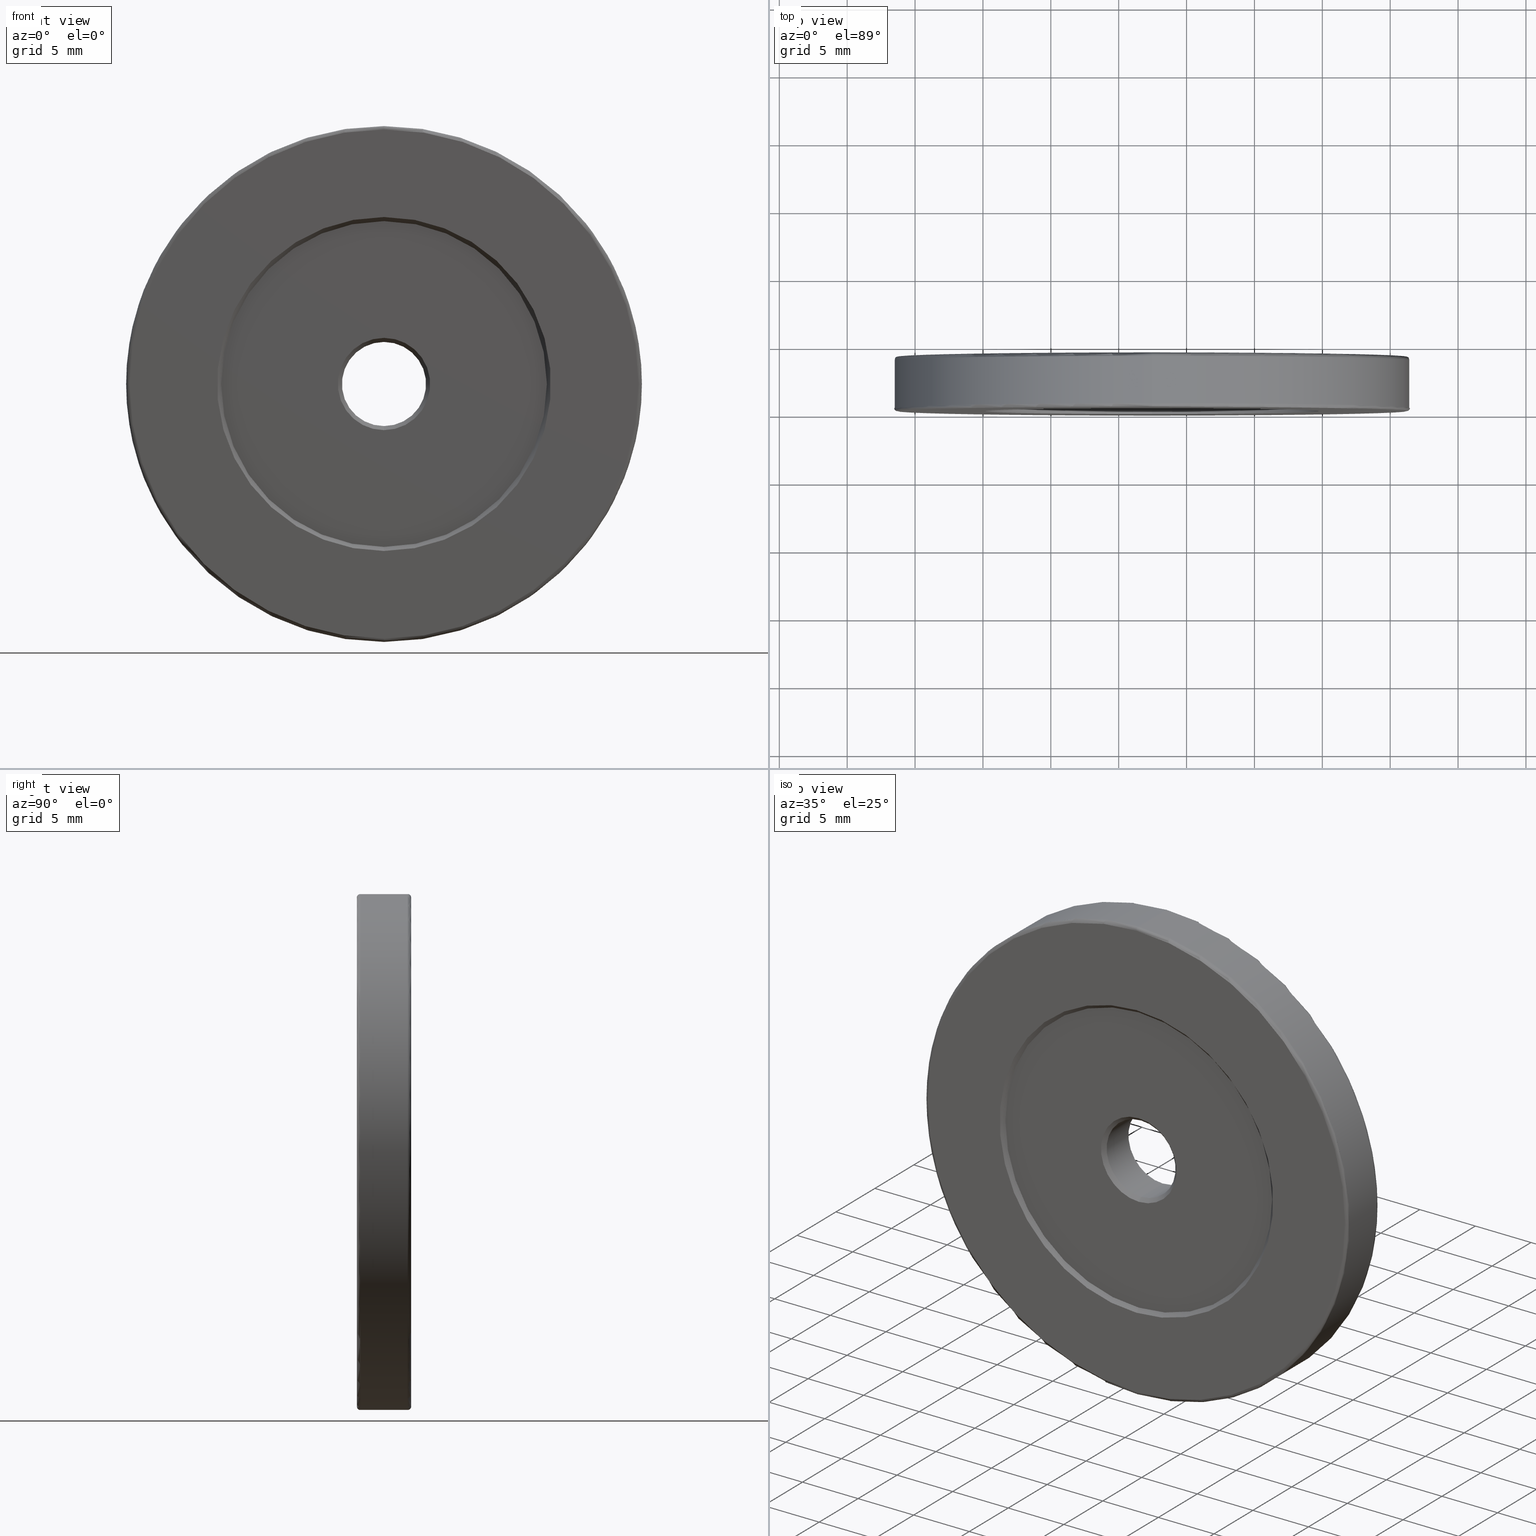
[diagram: canonical four-view strip — front | top / right | iso, engineering-drawing reading convention]
A machine part, canonical four-view strip (front | top / right | iso — engineering-drawing reading convention). The complete STEP part file that produces these views, byte-faithful:
ISO-10303-21;
HEADER;
FILE_DESCRIPTION (( 'STEP AP203' ),
    '1' );
FILE_NAME ('1.4.2.117_ZGH-38-DK4.STEP',
    '2024-04-06T05:19:42',
    ( '' ),
    ( '' ),
    'SwSTEP 2.0',
    'SolidWorks 2021',
    '' );
FILE_SCHEMA (( 'CONFIG_CONTROL_DESIGN' ));
ENDSEC;

DATA;
#1 = EDGE_CURVE ( 'NONE', #395, #132, #88, .T. ) ;
#2 = FACE_OUTER_BOUND ( 'NONE', #260, .T. ) ;
#3 = FACE_OUTER_BOUND ( 'NONE', #17, .T. ) ;
#4 = FACE_OUTER_BOUND ( 'NONE', #472, .T. ) ;
#5 = AXIS2_PLACEMENT_3D ( 'NONE', #425, #193, #385 ) ;
#6 = LOCAL_TIME ( 13, 19, 42.00000000000000000, #368 ) ;
#7 = CIRCLE ( 'NONE', #429, 0.2500000000000002220 ) ;
#8 = FACE_BOUND ( 'NONE', #436, .T. ) ;
#9 = CARTESIAN_POINT ( 'NONE',  ( -7.546808913101045846, -1.143595127302727832, 19.25000000000000000 ) ) ;
#10 = EDGE_LOOP ( 'NONE', ( #533, #67 ) ) ;
#11 = DIRECTION ( 'NONE',  ( -0.000000000000000000, -1.000000000000000000, -0.000000000000000000 ) ) ;
#12 = OPEN_SHELL ( 'NONE', ( #575, #25, #50, #387, #441, #44, #69, #548, #148, #480, #526, #565, #557, #524, #199, #464, #331, #583, #217, #59 ) ) ;
#13 = DIRECTION ( 'NONE',  ( 0.000000000000000000, 0.000000000000000000, -1.000000000000000000 ) ) ;
#14 = ORIENTED_EDGE ( 'NONE', *, *, #178, .F. ) ;
#15 = CARTESIAN_POINT ( 'NONE',  ( -7.546808913101048510, -1.493595127302719483, 34.89999999999999858 ) ) ;
#16 = PERSON ( 'δָ��', 'δָ��', 'δָ��', ('δָ��'), ('δָ��'), ('δָ��') ) ;
#17 = EDGE_LOOP ( 'NONE', ( #433, #281, #486, #106 ) ) ;
#18 = DIRECTION ( 'NONE',  ( 0.000000000000000000, 0.000000000000000000, 1.000000000000000000 ) ) ;
#19 = CARTESIAN_POINT ( 'NONE',  ( -7.546808913101048510, -4.893595127302727832, 38.00000000000000000 ) ) ;
#20 = ORIENTED_EDGE ( 'NONE', *, *, #296, .F. ) ;
#21 = DIRECTION ( 'NONE',  ( 0.000000000000000000, 1.000000000000000000, 0.000000000000000000 ) ) ;
#22 = CIRCLE ( 'NONE', #362, 12.30000000000001315 ) ;
#23 = EDGE_CURVE ( 'NONE', #163, #558, #190, .T. ) ;
#24 = CARTESIAN_POINT ( 'NONE',  ( -7.546808913101048510, -1.493595127302719483, 34.89999999999999858 ) ) ;
#25 = ADVANCED_FACE ( 'NONE', ( #333 ), #510, .T. ) ;
#26 = VECTOR ( 'NONE', #404, 1000.000000000000000 ) ;
#27 = CC_DESIGN_PERSON_AND_ORGANIZATION_ASSIGNMENT ( #448, #602, ( #409 ) ) ;
#28 = ORIENTED_EDGE ( 'NONE', *, *, #136, .F. ) ;
#29 = CARTESIAN_POINT ( 'NONE',  ( -7.546808913101048510, -4.643595127302727832, 38.00000000000000000 ) ) ;
#30 = ORIENTED_EDGE ( 'NONE', *, *, #256, .T. ) ;
#31 = DATE_AND_TIME ( #126, #6 ) ;
#32 = CARTESIAN_POINT ( 'NONE',  ( -7.546808913101048510, -1.143595127302727832, 56.99999999999999289 ) ) ;
#33 = ORIENTED_EDGE ( 'NONE', *, *, #107, .T. ) ;
#34 = DATE_AND_TIME ( #219, #172 ) ;
#35 = DIRECTION ( 'NONE',  ( 0.000000000000000000, 1.000000000000000000, 0.000000000000000000 ) ) ;
#36 = CONICAL_SURFACE ( 'NONE', #45, 12.30000000000001315, 0.7853981633974396193 ) ;
#37 = VECTOR ( 'NONE', #271, 1000.000000000000000 ) ;
#38 = ORIENTED_EDGE ( 'NONE', *, *, #247, .T. ) ;
#39 = DIRECTION ( 'NONE',  ( 0.000000000000000000, 1.000000000000000000, 0.000000000000000000 ) ) ;
#40 = PLANE ( 'NONE',  #186 ) ;
#41 = DATE_AND_TIME ( #273, #578 ) ;
#42 = DIRECTION ( 'NONE',  ( 0.000000000000000000, 0.000000000000000000, 1.000000000000000000 ) ) ;
#43 = FACE_OUTER_BOUND ( 'NONE', #451, .T. ) ;
#44 = ADVANCED_FACE ( 'NONE', ( #4 ), #353, .F. ) ;
#45 = AXIS2_PLACEMENT_3D ( 'NONE', #544, #238, #305 ) ;
#46 = TOROIDAL_SURFACE ( 'NONE', #612, 18.75000000000000000, 0.2500000000000000000 ) ;
#47 = CARTESIAN_POINT ( 'NONE',  ( -7.546808913101048510, -4.293595127302728187, 34.89999999999999858 ) ) ;
#48 = PLANE ( 'NONE',  #5 ) ;
#49 = DIRECTION ( 'NONE',  ( 0.000000000000000000, 0.000000000000000000, 1.000000000000000000 ) ) ;
#50 = ADVANCED_FACE ( 'NONE', ( #99 ), #521, .T. ) ;
#51 = CARTESIAN_POINT ( 'NONE',  ( -7.546808913101045846, -4.643595127302727832, 56.99999999999999289 ) ) ;
#52 = CARTESIAN_POINT ( 'NONE',  ( -7.546808913101048510, -0.8935951273027278319, 56.74999999999999289 ) ) ;
#53 = AXIS2_PLACEMENT_3D ( 'NONE', #207, #144, #541 ) ;
#54 = AXIS2_PLACEMENT_3D ( 'NONE', #101, #188, #294 ) ;
#55 = DIRECTION ( 'NONE',  ( 0.000000000000000000, 0.000000000000000000, 1.000000000000000000 ) ) ;
#56 = DIRECTION ( 'NONE',  ( -0.000000000000000000, -1.000000000000000000, -0.000000000000000000 ) ) ;
#57 = ORIENTED_EDGE ( 'NONE', *, *, #377, .T. ) ;
#58 = ORIENTED_EDGE ( 'NONE', *, *, #400, .F. ) ;
#59 = ADVANCED_FACE ( 'NONE', ( #91, #292 ), #40, .T. ) ;
#60 = CARTESIAN_POINT ( 'NONE',  ( -7.546808913101048510, -4.643595127302727832, 56.74999999999999289 ) ) ;
#61 = EDGE_CURVE ( 'NONE', #326, #62, #485, .T. ) ;
#62 = VERTEX_POINT ( 'NONE', #52 ) ;
#63 = CIRCLE ( 'NONE', #95, 3.099999999999998757 ) ;
#64 = ORIENTED_EDGE ( 'NONE', *, *, #567, .T. ) ;
#65 = FACE_OUTER_BOUND ( 'NONE', #79, .T. ) ;
#66 = CARTESIAN_POINT ( 'NONE',  ( -7.546808913101048510, -4.593595127302728010, 38.00000000000000000 ) ) ;
#67 = ORIENTED_EDGE ( 'NONE', *, *, #593, .F. ) ;
#68 = CARTESIAN_POINT ( 'NONE',  ( -7.546808913101048510, -1.493595127302719483, 38.00000000000000000 ) ) ;
#69 = ADVANCED_FACE ( 'NONE', ( #152 ), #105, .F. ) ;
#70 = EDGE_CURVE ( 'NONE', #225, #326, #7, .T. ) ;
#71 = DIRECTION ( 'NONE',  ( -0.000000000000000000, -1.000000000000000000, -0.000000000000000000 ) ) ;
#72 = EDGE_LOOP ( 'NONE', ( #546, #110, #33, #458 ) ) ;
#73 = MECHANICAL_CONTEXT ( 'NONE', #577, 'mechanical' ) ;
#74 = VECTOR ( 'NONE', #325, 1000.000000000000000 ) ;
#75 = APPROVAL_PERSON_ORGANIZATION ( #547, #420, #83 ) ;
#76 = DIRECTION ( 'NONE',  ( 0.000000000000000000, 0.000000000000000000, 1.000000000000000000 ) ) ;
#77 = AXIS2_PLACEMENT_3D ( 'NONE', #255, #481, #145 ) ;
#78 = CIRCLE ( 'NONE', #393, 3.099999999999998757 ) ;
#79 = EDGE_LOOP ( 'NONE', ( #531, #30 ) ) ;
#80 = COORDINATED_UNIVERSAL_TIME_OFFSET ( 8, 0, .AHEAD. ) ;
#81 = DIRECTION ( 'NONE',  ( 0.000000000000000000, 0.000000000000000000, 1.000000000000000000 ) ) ;
#82 = EDGE_LOOP ( 'NONE', ( #149, #543 ) ) ;
#83 = APPROVAL_ROLE ( '' ) ;
#84 = DIRECTION ( 'NONE',  ( 0.000000000000000000, 0.000000000000000000, -1.000000000000000000 ) ) ;
#85 = ORIENTED_EDGE ( 'NONE', *, *, #23, .T. ) ;
#86 = APPROVAL_DATE_TIME ( #34, #420 ) ;
#87 = DIRECTION ( 'NONE',  ( 0.000000000000000000, 0.7071067811865392461, 0.7071067811865556774 ) ) ;
#88 = CIRCLE ( 'NONE', #529, 12.00000000000000355 ) ;
#89 = ORIENTED_EDGE ( 'NONE', *, *, #380, .F. ) ;
#90 = CARTESIAN_POINT ( 'NONE',  ( -7.546808913101048510, -4.643595127302727832, 19.00000000000000000 ) ) ;
#91 = FACE_BOUND ( 'NONE', #117, .T. ) ;
#92 = EDGE_CURVE ( 'NONE', #225, #439, #242, .T. ) ;
#93 = ORIENTED_EDGE ( 'NONE', *, *, #268, .F. ) ;
#94 = CARTESIAN_POINT ( 'NONE',  ( -7.546808913101046734, -4.893595127302727832, 50.30000000000001137 ) ) ;
#95 = AXIS2_PLACEMENT_3D ( 'NONE', #427, #115, #261 ) ;
#96 = AXIS2_PLACEMENT_3D ( 'NONE', #112, #494, #162 ) ;
#97 = EDGE_CURVE ( 'NONE', #125, #604, #600, .T. ) ;
#98 = DIRECTION ( 'NONE',  ( 0.000000000000000000, 0.000000000000000000, 1.000000000000000000 ) ) ;
#99 = FACE_OUTER_BOUND ( 'NONE', #581, .T. ) ;
#100 = FACE_OUTER_BOUND ( 'NONE', #174, .T. ) ;
#101 = CARTESIAN_POINT ( 'NONE',  ( -7.546808913101048510, -0.8935951273027278319, 38.00000000000000000 ) ) ;
#102 = PLANE ( 'NONE',  #609 ) ;
#103 = ORIENTED_EDGE ( 'NONE', *, *, #107, .F. ) ;
#104 = VECTOR ( 'NONE', #119, 1000.000000000000000 ) ;
#105 = CYLINDRICAL_SURFACE ( 'NONE', #77, 3.099999999999998757 ) ;
#106 = ORIENTED_EDGE ( 'NONE', *, *, #127, .F. ) ;
#107 = EDGE_CURVE ( 'NONE', #584, #214, #300, .T. ) ;
#108 = ORIENTED_EDGE ( 'NONE', *, *, #501, .F. ) ;
#109 = UNCERTAINTY_MEASURE_WITH_UNIT (LENGTH_MEASURE( 1.000000000000000082E-05 ), #324, 'distance_accuracy_value', 'NONE');
#110 = ORIENTED_EDGE ( 'NONE', *, *, #248, .T. ) ;
#111 = CYLINDRICAL_SURFACE ( 'NONE', #446, 3.099999999999998757 ) ;
#112 = CARTESIAN_POINT ( 'NONE',  ( -7.546808913101048510, -4.643595127302727832, 38.00000000000000000 ) ) ;
#113 = EDGE_CURVE ( 'NONE', #125, #439, #570, .T. ) ;
#114 = EDGE_LOOP ( 'NONE', ( #482, #489 ) ) ;
#115 = DIRECTION ( 'NONE',  ( -0.000000000000000000, -1.000000000000000000, -0.000000000000000000 ) ) ;
#116 = CARTESIAN_POINT ( 'NONE',  ( -7.546808913101048510, -4.593595127302728010, 34.60000000000000142 ) ) ;
#117 = EDGE_LOOP ( 'NONE', ( #169, #64 ) ) ;
#118 = FACE_OUTER_BOUND ( 'NONE', #114, .T. ) ;
#119 = DIRECTION ( 'NONE',  ( 0.000000000000000000, 0.7071067811865373587, 0.7071067811865577868 ) ) ;
#120 = ORIENTED_EDGE ( 'NONE', *, *, #178, .T. ) ;
#121 = APPROVAL_STATUS ( 'not_yet_approved' ) ;
#122 = AXIS2_PLACEMENT_3D ( 'NONE', #490, #158, #444 ) ;
#123 = LINE ( 'NONE', #358, #344 ) ;
#124 = VECTOR ( 'NONE', #11, 1000.000000000000000 ) ;
#125 = VERTEX_POINT ( 'NONE', #477 ) ;
#126 = CALENDAR_DATE ( 2024, 6, 4 ) ;
#127 = EDGE_CURVE ( 'NONE', #257, #540, #245, .T. ) ;
#128 = PRODUCT_DEFINITION_SHAPE ( 'NONE', 'NONE',  #528 ) ;
#129 = DIRECTION ( 'NONE',  ( -0.000000000000000000, -1.000000000000000000, -0.000000000000000000 ) ) ;
#130 = ORIENTED_EDGE ( 'NONE', *, *, #501, .T. ) ;
#131 = CARTESIAN_POINT ( 'NONE',  ( -7.546808913101048510, -4.893595127302727832, 34.89999999999999858 ) ) ;
#132 = VERTEX_POINT ( 'NONE', #483 ) ;
#133 = PERSON_AND_ORGANIZATION_ROLE ( 'creator' ) ;
#134 = AXIS2_PLACEMENT_3D ( 'NONE', #68, #571, #246 ) ;
#135 = TOROIDAL_SURFACE ( 'NONE', #478, 18.75000000000000000, 0.2500000000000000000 ) ;
#136 = EDGE_CURVE ( 'NONE', #604, #558, #468, .T. ) ;
#137 = PERSON_AND_ORGANIZATION_ROLE ( 'creator' ) ;
#138 = DIRECTION ( 'NONE',  ( 0.000000000000000000, 1.000000000000000000, 0.000000000000000000 ) ) ;
#139 = DIRECTION ( 'NONE',  ( 0.000000000000000000, 0.000000000000000000, 1.000000000000000000 ) ) ;
#140 = CARTESIAN_POINT ( 'NONE',  ( -7.546808913101048510, -4.593595127302728010, 38.00000000000000000 ) ) ;
#141 = DIRECTION ( 'NONE',  ( 0.000000000000000000, 1.000000000000000000, 0.000000000000000000 ) ) ;
#142 = APPROVAL ( #559, 'δָ��' ) ;
#143 = CARTESIAN_POINT ( 'NONE',  ( -7.546808913101048510, -4.893595127302727832, 38.00000000000000000 ) ) ;
#144 = DIRECTION ( 'NONE',  ( -0.000000000000000000, -1.000000000000000000, -0.000000000000000000 ) ) ;
#145 = DIRECTION ( 'NONE',  ( 0.000000000000000000, 0.000000000000000000, 1.000000000000000000 ) ) ;
#146 = ORIENTED_EDGE ( 'NONE', *, *, #454, .F. ) ;
#147 = EDGE_CURVE ( 'NONE', #558, #439, #224, .T. ) ;
#148 = ADVANCED_FACE ( 'NONE', ( #453 ), #306, .F. ) ;
#149 = ORIENTED_EDGE ( 'NONE', *, *, #312, .T. ) ;
#150 = AXIS2_PLACEMENT_3D ( 'NONE', #313, #588, #220 ) ;
#151 = AXIS2_PLACEMENT_3D ( 'NONE', #237, #513, #98 ) ;
#152 = FACE_OUTER_BOUND ( 'NONE', #302, .T. ) ;
#153 = ORIENTED_EDGE ( 'NONE', *, *, #61, .T. ) ;
#154 = EDGE_CURVE ( 'NONE', #132, #320, #168, .T. ) ;
#155 = FACE_BOUND ( 'NONE', #590, .T. ) ;
#156 = DIRECTION ( 'NONE',  ( 0.000000000000000000, 1.000000000000000000, 0.000000000000000000 ) ) ;
#157 = ORIENTED_EDGE ( 'NONE', *, *, #113, .T. ) ;
#158 = DIRECTION ( 'NONE',  ( -1.000000000000000000, 0.000000000000000000, 0.000000000000000000 ) ) ;
#159 = AXIS2_PLACEMENT_3D ( 'NONE', #603, #563, #176 ) ;
#160 = CC_DESIGN_APPROVAL ( #596, ( #476 ) ) ;
#161 = AXIS2_PLACEMENT_3D ( 'NONE', #390, #520, #203 ) ;
#162 = DIRECTION ( 'NONE',  ( 0.000000000000000000, 0.000000000000000000, 1.000000000000000000 ) ) ;
#163 = VERTEX_POINT ( 'NONE', #32 ) ;
#164 = FACE_OUTER_BOUND ( 'NONE', #598, .T. ) ;
#165 = DIRECTION ( 'NONE',  ( 0.000000000000000000, 0.000000000000000000, -1.000000000000000000 ) ) ;
#166 = ORIENTED_EDGE ( 'NONE', *, *, #180, .T. ) ;
#167 = DATE_TIME_ROLE ( 'classification_date' ) ;
#168 = LINE ( 'NONE', #586, #37 ) ;
#169 = ORIENTED_EDGE ( 'NONE', *, *, #311, .T. ) ;
#170 = DATE_AND_TIME ( #321, #364 ) ;
#171 = EDGE_CURVE ( 'NONE', #594, #214, #336, .T. ) ;
#172 = LOCAL_TIME ( 13, 19, 42.00000000000000000, #555 ) ;
#173 = CARTESIAN_POINT ( 'NONE',  ( -7.546808913101044958, -1.143595127302727832, 19.00000000000000000 ) ) ;
#174 = EDGE_LOOP ( 'NONE', ( #252, #402, #408, #492 ) ) ;
#175 = APPROVAL_DATE_TIME ( #170, #596 ) ;
#176 = DIRECTION ( 'NONE',  ( 0.000000000000000000, 0.000000000000000000, -1.000000000000000000 ) ) ;
#177 = ORIENTED_EDGE ( 'NONE', *, *, #147, .T. ) ;
#178 = EDGE_CURVE ( 'NONE', #439, #558, #589, .T. ) ;
#179 = DIRECTION ( 'NONE',  ( -0.000000000000000000, -1.000000000000000000, -0.000000000000000000 ) ) ;
#180 = EDGE_CURVE ( 'NONE', #225, #163, #435, .T. ) ;
#181 = EDGE_CURVE ( 'NONE', #320, #250, #496, .T. ) ;
#182 = VERTEX_POINT ( 'NONE', #537 ) ;
#183 = DIRECTION ( 'NONE',  ( 0.000000000000000000, 0.000000000000000000, 1.000000000000000000 ) ) ;
#184 = DIRECTION ( 'NONE',  ( 0.000000000000000000, 0.000000000000000000, 1.000000000000000000 ) ) ;
#185 = CIRCLE ( 'NONE', #434, 12.00000000000000355 ) ;
#186 = AXIS2_PLACEMENT_3D ( 'NONE', #228, #284, #417 ) ;
#187 = AXIS2_PLACEMENT_3D ( 'NONE', #457, #35, #213 ) ;
#188 = DIRECTION ( 'NONE',  ( -0.000000000000000000, -1.000000000000000000, -0.000000000000000000 ) ) ;
#189 = FACE_OUTER_BOUND ( 'NONE', #587, .T. ) ;
#190 = LINE ( 'NONE', #566, #413 ) ;
#191 = DIRECTION ( 'NONE',  ( 0.000000000000000000, 1.000000000000000000, 0.000000000000000000 ) ) ;
#192 = CC_DESIGN_PERSON_AND_ORGANIZATION_ASSIGNMENT ( #503, #456, ( #476 ) ) ;
#193 = DIRECTION ( 'NONE',  ( 0.000000000000000000, 1.000000000000000000, 0.000000000000000000 ) ) ;
#194 = CC_DESIGN_APPROVAL ( #142, ( #528 ) ) ;
#195 = AXIS2_PLACEMENT_3D ( 'NONE', #549, #71, #350 ) ;
#196 = DIRECTION ( 'NONE',  ( 0.000000000000000000, 1.000000000000000000, 0.000000000000000000 ) ) ;
#197 = DIRECTION ( 'NONE',  ( 1.000000000000000000, -0.000000000000000000, 1.224646799147353207E-16 ) ) ;
#198 = EDGE_CURVE ( 'NONE', #395, #250, #307, .T. ) ;
#199 = ADVANCED_FACE ( 'NONE', ( #208 ), #135, .T. ) ;
#200 = VERTEX_POINT ( 'NONE', #407 ) ;
#201 = PRODUCT_RELATED_PRODUCT_CATEGORY ( 'detail', '', ( #409 ) ) ;
#202 = CIRCLE ( 'NONE', #335, 3.400000000000000355 ) ;
#203 = DIRECTION ( 'NONE',  ( 0.000000000000000000, 0.000000000000000000, 1.000000000000000000 ) ) ;
#204 = ORIENTED_EDGE ( 'NONE', *, *, #454, .T. ) ;
#205 = CARTESIAN_POINT ( 'NONE',  ( -7.546808913101048510, -4.893595127302727832, 56.74999999999999289 ) ) ;
#206 = EDGE_LOOP ( 'NONE', ( #57, #153 ) ) ;
#207 = CARTESIAN_POINT ( 'NONE',  ( -7.546808913101048510, -4.593595127302728010, 38.00000000000000000 ) ) ;
#208 = FACE_OUTER_BOUND ( 'NONE', #343, .T. ) ;
#209 = MANIFOLD_SURFACE_SHAPE_REPRESENTATION ( '1.4.2.117_ZGH-38-DK4', ( #240, #495 ), #222 ) ;
#210 = ORIENTED_EDGE ( 'NONE', *, *, #248, .F. ) ;
#211 = DIRECTION ( 'NONE',  ( -0.000000000000000000, 1.000000000000000000, -0.000000000000000000 ) ) ;
#212 = AXIS2_PLACEMENT_3D ( 'NONE', #394, #582, #523 ) ;
#213 = DIRECTION ( 'NONE',  ( 0.000000000000000000, 0.000000000000000000, 1.000000000000000000 ) ) ;
#214 = VERTEX_POINT ( 'NONE', #360 ) ;
#215 = APPLICATION_PROTOCOL_DEFINITION ( 'international standard', 'config_control_design', 1994, #383 ) ;
#216 = CARTESIAN_POINT ( 'NONE',  ( -7.546808913101048510, -4.893595127302727832, 25.69999999999998508 ) ) ;
#217 = ADVANCED_FACE ( 'NONE', ( #488 ), #365, .F. ) ;
#218 = ORIENTED_EDGE ( 'NONE', *, *, #554, .T. ) ;
#219 = CALENDAR_DATE ( 2024, 6, 4 ) ;
#220 = DIRECTION ( 'NONE',  ( 0.000000000000000000, 0.000000000000000000, 1.000000000000000000 ) ) ;
#221 = ORIENTED_EDGE ( 'NONE', *, *, #171, .F. ) ;
#222 =( GEOMETRIC_REPRESENTATION_CONTEXT ( 3 ) GLOBAL_UNCERTAINTY_ASSIGNED_CONTEXT ( ( #109 ) ) GLOBAL_UNIT_ASSIGNED_CONTEXT ( ( #324, #317, #327 ) ) REPRESENTATION_CONTEXT ( 'NONE', 'WORKASPACE' ) );
#223 = DIRECTION ( 'NONE',  ( -0.000000000000000000, 1.000000000000000000, -0.000000000000000000 ) ) ;
#224 = CIRCLE ( 'NONE', #96, 18.99999999999999645 ) ;
#225 = VERTEX_POINT ( 'NONE', #173 ) ;
#226 = COORDINATED_UNIVERSAL_TIME_OFFSET ( 8, 0, .AHEAD. ) ;
#227 = DIRECTION ( 'NONE',  ( 0.000000000000000000, 0.000000000000000000, 1.000000000000000000 ) ) ;
#228 = CARTESIAN_POINT ( 'NONE',  ( -7.546808913101048510, -4.593595127302728010, 38.00000000000000000 ) ) ;
#229 = COORDINATED_UNIVERSAL_TIME_OFFSET ( 8, 0, .AHEAD. ) ;
#230 = CARTESIAN_POINT ( 'NONE',  ( -7.546808913101048510, -1.193595127302719217, 38.00000000000000000 ) ) ;
#231 = CARTESIAN_POINT ( 'NONE',  ( -7.546808913101048510, -0.8935951273027278319, 38.00000000000000000 ) ) ;
#232 = DIRECTION ( 'NONE',  ( -0.000000000000000000, -1.000000000000000000, -0.000000000000000000 ) ) ;
#233 = CC_DESIGN_APPROVAL ( #420, ( #244 ) ) ;
#234 = AXIS2_PLACEMENT_3D ( 'NONE', #347, #56, #532 ) ;
#235 = CIRCLE ( 'NONE', #151, 18.74999999999999645 ) ;
#236 = ORIENTED_EDGE ( 'NONE', *, *, #113, .F. ) ;
#237 = CARTESIAN_POINT ( 'NONE',  ( -7.546808913101048510, -0.8935951273027278319, 38.00000000000000000 ) ) ;
#238 = DIRECTION ( 'NONE',  ( -0.000000000000000000, -1.000000000000000000, -0.000000000000000000 ) ) ;
#239 = VERTEX_POINT ( 'NONE', #366 ) ;
#240 = SHELL_BASED_SURFACE_MODEL ( 'NONE', ( #12 ) );
#241 = DIRECTION ( 'NONE',  ( -0.000000000000000000, 1.000000000000000000, -0.000000000000000000 ) ) ;
#242 = LINE ( 'NONE', #431, #124 ) ;
#243 = CONICAL_SURFACE ( 'NONE', #134, 3.099999999999998757, 0.7853981633974627119 ) ;
#244 = SECURITY_CLASSIFICATION ( '', '', #493 ) ;
#245 = CIRCLE ( 'NONE', #234, 12.29999999999999893 ) ;
#246 = DIRECTION ( 'NONE',  ( 0.000000000000000000, 0.000000000000000000, 1.000000000000000000 ) ) ;
#247 = EDGE_CURVE ( 'NONE', #346, #257, #123, .T. ) ;
#248 = EDGE_CURVE ( 'NONE', #359, #584, #422, .T. ) ;
#249 = ORIENTED_EDGE ( 'NONE', *, *, #263, .F. ) ;
#250 = VERTEX_POINT ( 'NONE', #274 ) ;
#251 = CIRCLE ( 'NONE', #484, 3.400000000000000355 ) ;
#252 = ORIENTED_EDGE ( 'NONE', *, *, #1, .T. ) ;
#253 = DESIGN_CONTEXT ( 'detailed design', #383, 'design' ) ;
#254 = AXIS2_PLACEMENT_3D ( 'NONE', #290, #518, #49 ) ;
#255 = CARTESIAN_POINT ( 'NONE',  ( -7.546808913101048510, -4.893595127302727832, 38.00000000000000000 ) ) ;
#256 = EDGE_CURVE ( 'NONE', #346, #239, #378, .T. ) ;
#257 = VERTEX_POINT ( 'NONE', #396 ) ;
#258 = CARTESIAN_POINT ( 'NONE',  ( -7.546808913101048510, -1.193595127302727876, 38.00000000000000000 ) ) ;
#259 = CARTESIAN_POINT ( 'NONE',  ( -7.546808913101048510, -4.893595127302727832, 38.00000000000000000 ) ) ;
#260 = EDGE_LOOP ( 'NONE', ( #352, #405, #310, #108 ) ) ;
#261 = DIRECTION ( 'NONE',  ( 0.000000000000000000, 0.000000000000000000, -1.000000000000000000 ) ) ;
#262 = DIRECTION ( 'NONE',  ( -0.000000000000000000, -1.000000000000000000, -0.000000000000000000 ) ) ;
#263 = EDGE_CURVE ( 'NONE', #604, #125, #516, .T. ) ;
#264 = ORIENTED_EDGE ( 'NONE', *, *, #296, .T. ) ;
#265 = AXIS2_PLACEMENT_3D ( 'NONE', #258, #196, #389 ) ;
#266 = AXIS2_PLACEMENT_3D ( 'NONE', #60, #438, #81 ) ;
#267 = TOROIDAL_SURFACE ( 'NONE', #508, 18.75000000000000000, 0.2500000000000000000 ) ;
#268 = EDGE_CURVE ( 'NONE', #359, #315, #542, .T. ) ;
#269 = ORIENTED_EDGE ( 'NONE', *, *, #311, .F. ) ;
#270 = DATE_TIME_ROLE ( 'creation_date' ) ;
#271 = DIRECTION ( 'NONE',  ( 8.659560562354860135E-17, -0.7071067811865536790, 0.7071067811865414665 ) ) ;
#272 = ORIENTED_EDGE ( 'NONE', *, *, #268, .T. ) ;
#273 = CALENDAR_DATE ( 2024, 6, 4 ) ;
#274 = CARTESIAN_POINT ( 'NONE',  ( -7.546808913101048510, -4.893595127302727832, 25.69999999999998508 ) ) ;
#275 = ORIENTED_EDGE ( 'NONE', *, *, #70, .F. ) ;
#276 = PERSON_AND_ORGANIZATION ( #16, #277 ) ;
#277 = ORGANIZATION ( 'δָ��', 'δָ��', '' ) ;
#278 = CC_DESIGN_DATE_AND_TIME_ASSIGNMENT ( #41, #270, ( #528 ) ) ;
#279 = DIRECTION ( 'NONE',  ( 0.000000000000000000, 0.000000000000000000, 1.000000000000000000 ) ) ;
#280 = AXIS2_PLACEMENT_3D ( 'NONE', #259, #354, #84 ) ;
#281 = ORIENTED_EDGE ( 'NONE', *, *, #573, .F. ) ;
#282 = DATE_AND_TIME ( #406, #459 ) ;
#283 = CARTESIAN_POINT ( 'NONE',  ( -7.546808913101048510, -1.193595127302727876, 41.39999999999999858 ) ) ;
#284 = DIRECTION ( 'NONE',  ( 0.000000000000000000, -1.000000000000000000, 0.000000000000000000 ) ) ;
#285 = DIRECTION ( 'NONE',  ( 0.000000000000000000, 1.000000000000000000, 0.000000000000000000 ) ) ;
#286 = LINE ( 'NONE', #328, #449 ) ;
#287 = AXIS2_PLACEMENT_3D ( 'NONE', #230, #285, #414 ) ;
#288 = CC_DESIGN_SECURITY_CLASSIFICATION ( #244, ( #476 ) ) ;
#289 = VECTOR ( 'NONE', #599, 1000.000000000000000 ) ;
#290 = CARTESIAN_POINT ( 'NONE',  ( -7.546808913101048510, -4.643595127302727832, 38.00000000000000000 ) ) ;
#291 = DIRECTION ( 'NONE',  ( 0.000000000000000000, 0.000000000000000000, 1.000000000000000000 ) ) ;
#292 = FACE_OUTER_BOUND ( 'NONE', #10, .T. ) ;
#293 = CARTESIAN_POINT ( 'NONE',  ( -7.546808913101048510, -1.193595127302727876, 38.00000000000000000 ) ) ;
#294 = DIRECTION ( 'NONE',  ( 0.000000000000000000, 0.000000000000000000, -1.000000000000000000 ) ) ;
#295 = EDGE_CURVE ( 'NONE', #594, #200, #445, .T. ) ;
#296 = EDGE_CURVE ( 'NONE', #214, #447, #592, .T. ) ;
#297 = DIRECTION ( 'NONE',  ( 0.000000000000000000, -0.000000000000000000, 1.000000000000000000 ) ) ;
#298 = VECTOR ( 'NONE', #309, 1000.000000000000000 ) ;
#299 = ORIENTED_EDGE ( 'NONE', *, *, #171, .T. ) ;
#300 = LINE ( 'NONE', #474, #388 ) ;
#301 = EDGE_CURVE ( 'NONE', #239, #540, #286, .T. ) ;
#302 = EDGE_LOOP ( 'NONE', ( #218, #304, #299, #103 ) ) ;
#303 = CONICAL_SURFACE ( 'NONE', #527, 12.00000000000000355, 0.7853981633974599363 ) ;
#304 = ORIENTED_EDGE ( 'NONE', *, *, #471, .T. ) ;
#305 = DIRECTION ( 'NONE',  ( 0.000000000000000000, 0.000000000000000000, -1.000000000000000000 ) ) ;
#306 = CONICAL_SURFACE ( 'NONE', #329, 3.400000000000000355, 0.7853981633974490562 ) ;
#307 = LINE ( 'NONE', #216, #289 ) ;
#308 = ORIENTED_EDGE ( 'NONE', *, *, #97, .F. ) ;
#309 = DIRECTION ( 'NONE',  ( 0.000000000000000000, -0.7071067811865470176, -0.7071067811865480168 ) ) ;
#310 = ORIENTED_EDGE ( 'NONE', *, *, #377, .F. ) ;
#311 = EDGE_CURVE ( 'NONE', #315, #182, #530, .T. ) ;
#312 = EDGE_CURVE ( 'NONE', #540, #257, #345, .T. ) ;
#313 = CARTESIAN_POINT ( 'NONE',  ( -7.546808913101048510, -1.493595127302719483, 38.00000000000000000 ) ) ;
#314 = CC_DESIGN_PERSON_AND_ORGANIZATION_ASSIGNMENT ( #551, #595, ( #244 ) ) ;
#315 = VERTEX_POINT ( 'NONE', #564 ) ;
#316 = CONICAL_SURFACE ( 'NONE', #53, 3.400000000000000355, 0.7853981633974490562 ) ;
#317 =( NAMED_UNIT ( * ) PLANE_ANGLE_UNIT ( ) SI_UNIT ( $, .RADIAN. ) );
#318 = AXIS2_PLACEMENT_3D ( 'NONE', #332, #511, #279 ) ;
#319 = DIRECTION ( 'NONE',  ( 0.000000000000000000, 0.000000000000000000, -1.000000000000000000 ) ) ;
#320 = VERTEX_POINT ( 'NONE', #94 ) ;
#321 = CALENDAR_DATE ( 2024, 6, 4 ) ;
#322 = CARTESIAN_POINT ( 'NONE',  ( -7.546808913101048510, -4.293595127302728187, 38.00000000000000000 ) ) ;
#323 = ORIENTED_EDGE ( 'NONE', *, *, #23, .F. ) ;
#324 =( LENGTH_UNIT ( ) NAMED_UNIT ( * ) SI_UNIT ( .MILLI., .METRE. ) );
#325 = DIRECTION ( 'NONE',  ( -0.000000000000000000, 1.000000000000000000, -0.000000000000000000 ) ) ;
#326 = VERTEX_POINT ( 'NONE', #461 ) ;
#327 =( NAMED_UNIT ( * ) SI_UNIT ( $, .STERADIAN. ) SOLID_ANGLE_UNIT ( ) );
#328 = CARTESIAN_POINT ( 'NONE',  ( -7.546808913101048510, -1.193595127302719217, 50.00000000000000000 ) ) ;
#329 = AXIS2_PLACEMENT_3D ( 'NONE', #66, #129, #165 ) ;
#330 = DIRECTION ( 'NONE',  ( 0.000000000000000000, 0.000000000000000000, 1.000000000000000000 ) ) ;
#331 = ADVANCED_FACE ( 'NONE', ( #43 ), #46, .T. ) ;
#332 = CARTESIAN_POINT ( 'NONE',  ( -7.546808913101048510, -0.8935951273027278319, 38.00000000000000000 ) ) ;
#333 = FACE_OUTER_BOUND ( 'NONE', #430, .T. ) ;
#334 = CARTESIAN_POINT ( 'NONE',  ( -7.546808913101048510, -4.593595127302728010, 41.39999999999999858 ) ) ;
#335 = AXIS2_PLACEMENT_3D ( 'NONE', #560, #232, #184 ) ;
#336 = CIRCLE ( 'NONE', #150, 3.099999999999998757 ) ;
#337 = ORIENTED_EDGE ( 'NONE', *, *, #256, .F. ) ;
#338 = DIRECTION ( 'NONE',  ( 0.000000000000000000, 1.000000000000000000, 0.000000000000000000 ) ) ;
#339 = CARTESIAN_POINT ( 'NONE',  ( -7.546808913101048510, -1.493595127302719483, 38.00000000000000000 ) ) ;
#340 = CC_DESIGN_PERSON_AND_ORGANIZATION_ASSIGNMENT ( #276, #133, ( #528 ) ) ;
#341 = CARTESIAN_POINT ( 'NONE',  ( -7.546808913101048510, -4.293595127302728187, 41.09999999999999432 ) ) ;
#342 = DIRECTION ( 'NONE',  ( -0.000000000000000000, 1.000000000000000000, -0.000000000000000000 ) ) ;
#343 = EDGE_LOOP ( 'NONE', ( #275, #89, #130, #502 ) ) ;
#344 = VECTOR ( 'NONE', #552, 1000.000000000000114 ) ;
#345 = CIRCLE ( 'NONE', #318, 12.29999999999999893 ) ;
#346 = VERTEX_POINT ( 'NONE', #469 ) ;
#347 = CARTESIAN_POINT ( 'NONE',  ( -7.546808913101048510, -0.8935951273027278319, 38.00000000000000000 ) ) ;
#348 = ORIENTED_EDGE ( 'NONE', *, *, #419, .T. ) ;
#349 = CARTESIAN_POINT ( 'NONE',  ( -7.546808913101048510, -0.8935951273027278319, 38.00000000000000000 ) ) ;
#350 = DIRECTION ( 'NONE',  ( 0.000000000000000000, 0.000000000000000000, 1.000000000000000000 ) ) ;
#351 = VECTOR ( 'NONE', #376, 1000.000000000000000 ) ;
#352 = ORIENTED_EDGE ( 'NONE', *, *, #180, .F. ) ;
#353 = CONICAL_SURFACE ( 'NONE', #460, 3.099999999999998757, 0.7853981633974627119 ) ;
#354 = DIRECTION ( 'NONE',  ( -0.000000000000000000, -1.000000000000000000, -0.000000000000000000 ) ) ;
#355 = EDGE_CURVE ( 'NONE', #214, #594, #78, .T. ) ;
#356 = ORIENTED_EDGE ( 'NONE', *, *, #432, .T. ) ;
#357 = DIRECTION ( 'NONE',  ( 0.000000000000000000, 0.000000000000000000, -1.000000000000000000 ) ) ;
#358 = CARTESIAN_POINT ( 'NONE',  ( -7.546808913101046734, -1.193595127302719217, 25.99999999999999645 ) ) ;
#359 = VERTEX_POINT ( 'NONE', #47 ) ;
#360 = CARTESIAN_POINT ( 'NONE',  ( -7.546808913101048510, -1.493595127302719483, 41.09999999999999432 ) ) ;
#361 = ORIENTED_EDGE ( 'NONE', *, *, #593, .T. ) ;
#362 = AXIS2_PLACEMENT_3D ( 'NONE', #613, #141, #330 ) ;
#363 = APPROVAL_ROLE ( '' ) ;
#364 = LOCAL_TIME ( 13, 19, 42.00000000000000000, #226 ) ;
#365 = CONICAL_SURFACE ( 'NONE', #280, 12.30000000000001315, 0.7853981633974396193 ) ;
#366 = CARTESIAN_POINT ( 'NONE',  ( -7.546808913101048510, -1.193595127302727876, 50.00000000000000000 ) ) ;
#367 = ORIENTED_EDGE ( 'NONE', *, *, #295, .T. ) ;
#368 = COORDINATED_UNIVERSAL_TIME_OFFSET ( 8, 0, .AHEAD. ) ;
#369 = CYLINDRICAL_SURFACE ( 'NONE', #159, 19.00000000000000000 ) ;
#370 = EDGE_LOOP ( 'NONE', ( #553, #361, #550, #601 ) ) ;
#371 = DIRECTION ( 'NONE',  ( 1.000000000000000000, 0.000000000000000000, 0.000000000000000000 ) ) ;
#372 = DIRECTION ( 'NONE',  ( 0.000000000000000000, 0.000000000000000000, 1.000000000000000000 ) ) ;
#373 = DIRECTION ( 'NONE',  ( -0.000000000000000000, -1.000000000000000000, -0.000000000000000000 ) ) ;
#374 = PERSON_AND_ORGANIZATION ( #16, #277 ) ;
#375 = CIRCLE ( 'NONE', #122, 0.2500000000000002220 ) ;
#376 = DIRECTION ( 'NONE',  ( 8.659560562354939021E-17, -0.7071067811865470176, 0.7071067811865480168 ) ) ;
#377 = EDGE_CURVE ( 'NONE', #62, #326, #235, .T. ) ;
#378 = CIRCLE ( 'NONE', #187, 12.00000000000000355 ) ;
#379 = DIRECTION ( 'NONE',  ( 0.000000000000000000, 0.000000000000000000, 1.000000000000000000 ) ) ;
#380 = EDGE_CURVE ( 'NONE', #163, #225, #499, .T. ) ;
#381 = LINE ( 'NONE', #334, #351 ) ;
#382 = DIRECTION ( 'NONE',  ( -0.000000000000000000, 1.000000000000000000, -0.000000000000000000 ) ) ;
#383 = APPLICATION_CONTEXT ( 'configuration controlled 3d designs of mechanical parts and assemblies' ) ;
#384 = DIRECTION ( 'NONE',  ( 0.000000000000000000, 0.000000000000000000, 1.000000000000000000 ) ) ;
#385 = DIRECTION ( 'NONE',  ( 0.000000000000000000, -0.000000000000000000, 1.000000000000000000 ) ) ;
#386 = APPROVAL_PERSON_ORGANIZATION ( #498, #142, #363 ) ;
#387 = ADVANCED_FACE ( 'NONE', ( #2 ), #267, .T. ) ;
#388 = VECTOR ( 'NONE', #342, 1000.000000000000000 ) ;
#389 = DIRECTION ( 'NONE',  ( 0.000000000000000000, 0.000000000000000000, 1.000000000000000000 ) ) ;
#390 = CARTESIAN_POINT ( 'NONE',  ( -7.546808913101048510, -4.893595127302727832, 38.00000000000000000 ) ) ;
#391 = ORIENTED_EDGE ( 'NONE', *, *, #181, .T. ) ;
#392 = ORIENTED_EDGE ( 'NONE', *, *, #419, .F. ) ;
#393 = AXIS2_PLACEMENT_3D ( 'NONE', #418, #138, #139 ) ;
#394 = CARTESIAN_POINT ( 'NONE',  ( -7.546808913101045846, -4.643595127302727832, 19.25000000000000000 ) ) ;
#395 = VERTEX_POINT ( 'NONE', #423 ) ;
#396 = CARTESIAN_POINT ( 'NONE',  ( -7.546808913101046734, -0.8935951273027278319, 25.69999999999999574 ) ) ;
#397 = ORIENTED_EDGE ( 'NONE', *, *, #312, .F. ) ;
#398 = CARTESIAN_POINT ( 'NONE',  ( -7.546808913101048510, -4.593595127302728010, 38.00000000000000000 ) ) ;
#399 = DIRECTION ( 'NONE',  ( 0.000000000000000000, 0.000000000000000000, 1.000000000000000000 ) ) ;
#400 = EDGE_CURVE ( 'NONE', #200, #447, #251, .T. ) ;
#401 = AXIS2_PLACEMENT_3D ( 'NONE', #398, #211, #357 ) ;
#402 = ORIENTED_EDGE ( 'NONE', *, *, #154, .T. ) ;
#403 = AXIS2_PLACEMENT_3D ( 'NONE', #500, #156, #410 ) ;
#404 = DIRECTION ( 'NONE',  ( 8.659560562355058583E-17, 0.7071067811865373587, -0.7071067811865577868 ) ) ;
#405 = ORIENTED_EDGE ( 'NONE', *, *, #70, .T. ) ;
#406 = CALENDAR_DATE ( 2024, 6, 4 ) ;
#407 = CARTESIAN_POINT ( 'NONE',  ( -7.546808913101048510, -1.193595127302727876, 34.60000000000000142 ) ) ;
#408 = ORIENTED_EDGE ( 'NONE', *, *, #432, .F. ) ;
#409 = PRODUCT ( '1.4.2.117_ZGH-38-DK4', '1.4.2.117_ZGH-38-DK4', '', ( #73 ) ) ;
#410 = DIRECTION ( 'NONE',  ( 0.000000000000000000, 0.000000000000000000, 1.000000000000000000 ) ) ;
#411 = ORIENTED_EDGE ( 'NONE', *, *, #295, .F. ) ;
#412 = APPLICATION_PROTOCOL_DEFINITION ( 'international standard', 'config_control_design', 1994, #577 ) ;
#413 = VECTOR ( 'NONE', #373, 1000.000000000000000 ) ;
#414 = DIRECTION ( 'NONE',  ( 0.000000000000000000, 0.000000000000000000, 1.000000000000000000 ) ) ;
#415 = ORIENTED_EDGE ( 'NONE', *, *, #136, .T. ) ;
#416 = CARTESIAN_POINT ( 'NONE',  ( -7.546808913101048510, -1.143595127302727832, 38.00000000000000000 ) ) ;
#417 = DIRECTION ( 'NONE',  ( 0.000000000000000000, 0.000000000000000000, 1.000000000000000000 ) ) ;
#418 = CARTESIAN_POINT ( 'NONE',  ( -7.546808913101048510, -1.493595127302719483, 38.00000000000000000 ) ) ;
#419 = EDGE_CURVE ( 'NONE', #447, #200, #202, .T. ) ;
#420 = APPROVAL ( #121, 'δָ��' ) ;
#421 = CIRCLE ( 'NONE', #265, 12.00000000000000355 ) ;
#422 = CIRCLE ( 'NONE', #539, 3.099999999999998757 ) ;
#423 = CARTESIAN_POINT ( 'NONE',  ( -7.546808913101048510, -4.593595127302728010, 25.99999999999999645 ) ) ;
#424 = AXIS2_PLACEMENT_3D ( 'NONE', #512, #223, #606 ) ;
#425 = CARTESIAN_POINT ( 'NONE',  ( -7.546808913101048510, -4.893595127302727832, 38.00000000000000000 ) ) ;
#426 = CC_DESIGN_DATE_AND_TIME_ASSIGNMENT ( #31, #167, ( #244 ) ) ;
#427 = CARTESIAN_POINT ( 'NONE',  ( -7.546808913101048510, -4.293595127302728187, 38.00000000000000000 ) ) ;
#428 = AXIS2_PLACEMENT_3D ( 'NONE', #349, #338, #591 ) ;
#429 = AXIS2_PLACEMENT_3D ( 'NONE', #9, #197, #13 ) ;
#430 = EDGE_LOOP ( 'NONE', ( #308, #157, #574, #28 ) ) ;
#431 = CARTESIAN_POINT ( 'NONE',  ( -7.546808913101048510, -0.8935951273027278319, 19.00000000000000000 ) ) ;
#432 = EDGE_CURVE ( 'NONE', #250, #320, #22, .T. ) ;
#433 = ORIENTED_EDGE ( 'NONE', *, *, #247, .F. ) ;
#434 = AXIS2_PLACEMENT_3D ( 'NONE', #522, #475, #55 ) ;
#435 = CIRCLE ( 'NONE', #195, 18.99999999999999645 ) ;
#436 = EDGE_LOOP ( 'NONE', ( #348, #525 ) ) ;
#437 = FACE_OUTER_BOUND ( 'NONE', #455, .T. ) ;
#438 = DIRECTION ( 'NONE',  ( -1.000000000000000000, 0.000000000000000000, 0.000000000000000000 ) ) ;
#439 = VERTEX_POINT ( 'NONE', #90 ) ;
#440 = PLANE ( 'NONE',  #428 ) ;
#441 = ADVANCED_FACE ( 'NONE', ( #189 ), #536, .F. ) ;
#442 = DIRECTION ( 'NONE',  ( 0.000000000000000000, 1.000000000000000000, 0.000000000000000000 ) ) ;
#443 = ORIENTED_EDGE ( 'NONE', *, *, #92, .F. ) ;
#444 = DIRECTION ( 'NONE',  ( 0.000000000000000000, 0.000000000000000000, 1.000000000000000000 ) ) ;
#445 = LINE ( 'NONE', #24, #26 ) ;
#446 = AXIS2_PLACEMENT_3D ( 'NONE', #143, #241, #18 ) ;
#447 = VERTEX_POINT ( 'NONE', #283 ) ;
#448 = PERSON_AND_ORGANIZATION ( #16, #277 ) ;
#449 = VECTOR ( 'NONE', #87, 1000.000000000000114 ) ;
#450 = DIRECTION ( 'NONE',  ( 0.000000000000000000, 0.000000000000000000, 1.000000000000000000 ) ) ;
#451 = EDGE_LOOP ( 'NONE', ( #236, #249, #415, #14 ) ) ;
#452 = CARTESIAN_POINT ( 'NONE',  ( 0.000000000000000000, 0.000000000000000000, 0.000000000000000000 ) ) ;
#453 = FACE_OUTER_BOUND ( 'NONE', #576, .T. ) ;
#454 = EDGE_CURVE ( 'NONE', #584, #182, #381, .T. ) ;
#455 = EDGE_LOOP ( 'NONE', ( #507, #204, #269, #93 ) ) ;
#456 = PERSON_AND_ORGANIZATION_ROLE ( 'design_supplier' ) ;
#457 = CARTESIAN_POINT ( 'NONE',  ( -7.546808913101048510, -1.193595127302727876, 38.00000000000000000 ) ) ;
#458 = ORIENTED_EDGE ( 'NONE', *, *, #355, .T. ) ;
#459 = LOCAL_TIME ( 13, 19, 42.00000000000000000, #80 ) ;
#460 = AXIS2_PLACEMENT_3D ( 'NONE', #339, #515, #561 ) ;
#461 = CARTESIAN_POINT ( 'NONE',  ( -7.546808913101045846, -0.8935951273027278319, 19.25000000000000000 ) ) ;
#462 = ORIENTED_EDGE ( 'NONE', *, *, #355, .F. ) ;
#463 = APPROVAL_DATE_TIME ( #282, #142 ) ;
#464 = ADVANCED_FACE ( 'NONE', ( #470 ), #369, .T. ) ;
#465 = CARTESIAN_POINT ( 'NONE',  ( -7.546808913101048510, -1.143595127302727832, 38.00000000000000000 ) ) ;
#466 = ORIENTED_EDGE ( 'NONE', *, *, #380, .T. ) ;
#467 = CIRCLE ( 'NONE', #401, 3.400000000000000355 ) ;
#468 = CIRCLE ( 'NONE', #266, 0.2500000000000002220 ) ;
#469 = CARTESIAN_POINT ( 'NONE',  ( -7.546808913101046734, -1.193595127302727876, 25.99999999999999645 ) ) ;
#470 = FACE_OUTER_BOUND ( 'NONE', #497, .T. ) ;
#471 = EDGE_CURVE ( 'NONE', #359, #594, #556, .T. ) ;
#472 = EDGE_LOOP ( 'NONE', ( #221, #367, #392, #20 ) ) ;
#473 = FACE_OUTER_BOUND ( 'NONE', #206, .T. ) ;
#474 = CARTESIAN_POINT ( 'NONE',  ( -7.546808913101048510, -4.893595127302727832, 41.09999999999999432 ) ) ;
#475 = DIRECTION ( 'NONE',  ( -0.000000000000000000, 1.000000000000000000, -0.000000000000000000 ) ) ;
#476 = PRODUCT_DEFINITION_FORMATION_WITH_SPECIFIED_SOURCE ( '�κ�', '', #409, .NOT_KNOWN. ) ;
#477 = CARTESIAN_POINT ( 'NONE',  ( -7.546808913101045846, -4.893595127302727832, 19.25000000000000000 ) ) ;
#478 = AXIS2_PLACEMENT_3D ( 'NONE', #597, #491, #450 ) ;
#479 = ORIENTED_EDGE ( 'NONE', *, *, #301, .F. ) ;
#480 = ADVANCED_FACE ( 'NONE', ( #506 ), #111, .F. ) ;
#481 = DIRECTION ( 'NONE',  ( -0.000000000000000000, 1.000000000000000000, -0.000000000000000000 ) ) ;
#482 = ORIENTED_EDGE ( 'NONE', *, *, #263, .T. ) ;
#483 = CARTESIAN_POINT ( 'NONE',  ( -7.546808913101046734, -4.593595127302728010, 50.00000000000000000 ) ) ;
#484 = AXIS2_PLACEMENT_3D ( 'NONE', #568, #517, #291 ) ;
#485 = CIRCLE ( 'NONE', #611, 18.74999999999999645 ) ;
#486 = ORIENTED_EDGE ( 'NONE', *, *, #301, .T. ) ;
#487 = CARTESIAN_POINT ( 'NONE',  ( -7.546808913101048510, -1.193595127302719217, 38.00000000000000000 ) ) ;
#488 = FACE_OUTER_BOUND ( 'NONE', #370, .T. ) ;
#489 = ORIENTED_EDGE ( 'NONE', *, *, #97, .T. ) ;
#490 = CARTESIAN_POINT ( 'NONE',  ( -7.546808913101048510, -1.143595127302727832, 56.74999999999999289 ) ) ;
#491 = DIRECTION ( 'NONE',  ( 0.000000000000000000, 1.000000000000000000, 0.000000000000000000 ) ) ;
#492 = ORIENTED_EDGE ( 'NONE', *, *, #198, .F. ) ;
#493 = SECURITY_CLASSIFICATION_LEVEL ( 'unclassified' ) ;
#494 = DIRECTION ( 'NONE',  ( 0.000000000000000000, 1.000000000000000000, 0.000000000000000000 ) ) ;
#495 = AXIS2_PLACEMENT_3D ( 'NONE', #452, #183, #371 ) ;
#496 = CIRCLE ( 'NONE', #403, 12.30000000000001315 ) ;
#497 = EDGE_LOOP ( 'NONE', ( #323, #466, #534, #120 ) ) ;
#498 = PERSON_AND_ORGANIZATION ( #16, #277 ) ;
#499 = CIRCLE ( 'NONE', #580, 18.99999999999999645 ) ;
#500 = CARTESIAN_POINT ( 'NONE',  ( -7.546808913101048510, -4.893595127302727832, 38.00000000000000000 ) ) ;
#501 = EDGE_CURVE ( 'NONE', #163, #62, #375, .T. ) ;
#502 = ORIENTED_EDGE ( 'NONE', *, *, #61, .F. ) ;
#503 = PERSON_AND_ORGANIZATION ( #16, #277 ) ;
#504 = DIRECTION ( 'NONE',  ( -0.000000000000000000, -1.000000000000000000, -0.000000000000000000 ) ) ;
#505 = ORIENTED_EDGE ( 'NONE', *, *, #567, .F. ) ;
#506 = FACE_OUTER_BOUND ( 'NONE', #72, .T. ) ;
#507 = ORIENTED_EDGE ( 'NONE', *, *, #554, .F. ) ;
#508 = AXIS2_PLACEMENT_3D ( 'NONE', #465, #191, #384 ) ;
#509 = APPROVAL_ROLE ( '' ) ;
#510 = TOROIDAL_SURFACE ( 'NONE', #254, 18.75000000000000000, 0.2500000000000000000 ) ;
#511 = DIRECTION ( 'NONE',  ( -0.000000000000000000, -1.000000000000000000, -0.000000000000000000 ) ) ;
#512 = CARTESIAN_POINT ( 'NONE',  ( -7.546808913101048510, -4.593595127302728010, 38.00000000000000000 ) ) ;
#513 = DIRECTION ( 'NONE',  ( 0.000000000000000000, 1.000000000000000000, 0.000000000000000000 ) ) ;
#514 = CC_DESIGN_PERSON_AND_ORGANIZATION_ASSIGNMENT ( #374, #137, ( #476 ) ) ;
#515 = DIRECTION ( 'NONE',  ( 0.000000000000000000, 1.000000000000000000, 0.000000000000000000 ) ) ;
#516 = CIRCLE ( 'NONE', #562, 18.74999999999999645 ) ;
#517 = DIRECTION ( 'NONE',  ( -0.000000000000000000, -1.000000000000000000, -0.000000000000000000 ) ) ;
#518 = DIRECTION ( 'NONE',  ( 0.000000000000000000, 1.000000000000000000, 0.000000000000000000 ) ) ;
#519 = DIRECTION ( 'NONE',  ( 0.000000000000000000, 0.000000000000000000, 1.000000000000000000 ) ) ;
#520 = DIRECTION ( 'NONE',  ( -0.000000000000000000, -1.000000000000000000, -0.000000000000000000 ) ) ;
#521 = CYLINDRICAL_SURFACE ( 'NONE', #54, 19.00000000000000000 ) ;
#522 = CARTESIAN_POINT ( 'NONE',  ( -7.546808913101048510, -4.593595127302728010, 38.00000000000000000 ) ) ;
#523 = DIRECTION ( 'NONE',  ( 0.000000000000000000, 0.000000000000000000, -1.000000000000000000 ) ) ;
#524 = ADVANCED_FACE ( 'NONE', ( #473, #572 ), #440, .T. ) ;
#525 = ORIENTED_EDGE ( 'NONE', *, *, #400, .T. ) ;
#526 = ADVANCED_FACE ( 'NONE', ( #164 ), #243, .F. ) ;
#527 = AXIS2_PLACEMENT_3D ( 'NONE', #487, #585, #519 ) ;
#528 = PRODUCT_DEFINITION ( 'δ֪', '', #476, #253 ) ;
#529 = AXIS2_PLACEMENT_3D ( 'NONE', #140, #382, #42 ) ;
#530 = CIRCLE ( 'NONE', #424, 3.400000000000000355 ) ;
#531 = ORIENTED_EDGE ( 'NONE', *, *, #573, .T. ) ;
#532 = DIRECTION ( 'NONE',  ( 0.000000000000000000, 0.000000000000000000, 1.000000000000000000 ) ) ;
#533 = ORIENTED_EDGE ( 'NONE', *, *, #1, .F. ) ;
#534 = ORIENTED_EDGE ( 'NONE', *, *, #92, .T. ) ;
#535 = CARTESIAN_POINT ( 'NONE',  ( -7.546808913101048510, -0.8935951273027278319, 50.29999999999999716 ) ) ;
#536 = CONICAL_SURFACE ( 'NONE', #287, 12.00000000000000355, 0.7853981633974599363 ) ;
#537 = CARTESIAN_POINT ( 'NONE',  ( -7.546808913101048510, -4.593595127302728010, 41.39999999999999858 ) ) ;
#538 = APPROVAL_PERSON_ORGANIZATION ( #605, #596, #509 ) ;
#539 = AXIS2_PLACEMENT_3D ( 'NONE', #322, #504, #319 ) ;
#540 = VERTEX_POINT ( 'NONE', #535 ) ;
#541 = DIRECTION ( 'NONE',  ( 0.000000000000000000, 0.000000000000000000, -1.000000000000000000 ) ) ;
#542 = LINE ( 'NONE', #116, #298 ) ;
#543 = ORIENTED_EDGE ( 'NONE', *, *, #127, .T. ) ;
#544 = CARTESIAN_POINT ( 'NONE',  ( -7.546808913101048510, -4.893595127302727832, 38.00000000000000000 ) ) ;
#545 = CARTESIAN_POINT ( 'NONE',  ( -7.546808913101048510, -1.493595127302719483, 41.09999999999999432 ) ) ;
#546 = ORIENTED_EDGE ( 'NONE', *, *, #471, .F. ) ;
#547 = PERSON_AND_ORGANIZATION ( #16, #277 ) ;
#548 = ADVANCED_FACE ( 'NONE', ( #437 ), #316, .F. ) ;
#549 = CARTESIAN_POINT ( 'NONE',  ( -7.546808913101048510, -1.143595127302727832, 38.00000000000000000 ) ) ;
#550 = ORIENTED_EDGE ( 'NONE', *, *, #198, .T. ) ;
#551 = PERSON_AND_ORGANIZATION ( #16, #277 ) ;
#552 = DIRECTION ( 'NONE',  ( 8.659560562355033931E-17, 0.7071067811865392461, -0.7071067811865556774 ) ) ;
#553 = ORIENTED_EDGE ( 'NONE', *, *, #154, .F. ) ;
#554 = EDGE_CURVE ( 'NONE', #584, #359, #63, .T. ) ;
#555 = COORDINATED_UNIVERSAL_TIME_OFFSET ( 8, 0, .AHEAD. ) ;
#556 = LINE ( 'NONE', #131, #74 ) ;
#557 = ADVANCED_FACE ( 'NONE', ( #3 ), #303, .F. ) ;
#558 = VERTEX_POINT ( 'NONE', #51 ) ;
#559 = APPROVAL_STATUS ( 'not_yet_approved' ) ;
#560 = CARTESIAN_POINT ( 'NONE',  ( -7.546808913101048510, -1.193595127302727876, 38.00000000000000000 ) ) ;
#561 = DIRECTION ( 'NONE',  ( 0.000000000000000000, 0.000000000000000000, 1.000000000000000000 ) ) ;
#562 = AXIS2_PLACEMENT_3D ( 'NONE', #19, #262, #399 ) ;
#563 = DIRECTION ( 'NONE',  ( -0.000000000000000000, -1.000000000000000000, -0.000000000000000000 ) ) ;
#564 = CARTESIAN_POINT ( 'NONE',  ( -7.546808913101048510, -4.593595127302728010, 34.60000000000000142 ) ) ;
#565 = ADVANCED_FACE ( 'NONE', ( #8, #65 ), #102, .T. ) ;
#566 = CARTESIAN_POINT ( 'NONE',  ( -7.546808913101045846, -0.8935951273027278319, 56.99999999999999289 ) ) ;
#567 = EDGE_CURVE ( 'NONE', #182, #315, #467, .T. ) ;
#568 = CARTESIAN_POINT ( 'NONE',  ( -7.546808913101048510, -1.193595127302727876, 38.00000000000000000 ) ) ;
#569 = SHAPE_DEFINITION_REPRESENTATION ( #128, #209 ) ;
#570 = CIRCLE ( 'NONE', #212, 0.2500000000000002220 ) ;
#571 = DIRECTION ( 'NONE',  ( 0.000000000000000000, 1.000000000000000000, 0.000000000000000000 ) ) ;
#572 = FACE_BOUND ( 'NONE', #82, .T. ) ;
#573 = EDGE_CURVE ( 'NONE', #239, #346, #421, .T. ) ;
#574 = ORIENTED_EDGE ( 'NONE', *, *, #147, .F. ) ;
#575 = ADVANCED_FACE ( 'NONE', ( #100 ), #36, .F. ) ;
#576 = EDGE_LOOP ( 'NONE', ( #146, #210, #272, #505 ) ) ;
#577 = APPLICATION_CONTEXT ( 'configuration controlled 3d designs of mechanical parts and assemblies' ) ;
#578 = LOCAL_TIME ( 13, 19, 42.00000000000000000, #229 ) ;
#579 = AXIS2_PLACEMENT_3D ( 'NONE', #29, #442, #76 ) ;
#580 = AXIS2_PLACEMENT_3D ( 'NONE', #416, #179, #372 ) ;
#581 = EDGE_LOOP ( 'NONE', ( #166, #85, #177, #443 ) ) ;
#582 = DIRECTION ( 'NONE',  ( 1.000000000000000000, -0.000000000000000000, 1.224646799147353207E-16 ) ) ;
#583 = ADVANCED_FACE ( 'NONE', ( #118, #155 ), #48, .F. ) ;
#584 = VERTEX_POINT ( 'NONE', #341 ) ;
#585 = DIRECTION ( 'NONE',  ( 0.000000000000000000, 1.000000000000000000, 0.000000000000000000 ) ) ;
#586 = CARTESIAN_POINT ( 'NONE',  ( -7.546808913101046734, -4.893595127302727832, 50.30000000000001137 ) ) ;
#587 = EDGE_LOOP ( 'NONE', ( #337, #38, #397, #479 ) ) ;
#588 = DIRECTION ( 'NONE',  ( 0.000000000000000000, 1.000000000000000000, 0.000000000000000000 ) ) ;
#589 = CIRCLE ( 'NONE', #579, 18.99999999999999645 ) ;
#590 = EDGE_LOOP ( 'NONE', ( #356, #391 ) ) ;
#591 = DIRECTION ( 'NONE',  ( 0.000000000000000000, -0.000000000000000000, 1.000000000000000000 ) ) ;
#592 = LINE ( 'NONE', #545, #104 ) ;
#593 = EDGE_CURVE ( 'NONE', #132, #395, #185, .T. ) ;
#594 = VERTEX_POINT ( 'NONE', #15 ) ;
#595 = PERSON_AND_ORGANIZATION_ROLE ( 'classification_officer' ) ;
#596 = APPROVAL ( #607, 'δָ��' ) ;
#597 = CARTESIAN_POINT ( 'NONE',  ( -7.546808913101048510, -1.143595127302727832, 38.00000000000000000 ) ) ;
#598 = EDGE_LOOP ( 'NONE', ( #411, #462, #264, #58 ) ) ;
#599 = DIRECTION ( 'NONE',  ( 0.000000000000000000, -0.7071067811865536790, -0.7071067811865414665 ) ) ;
#600 = CIRCLE ( 'NONE', #161, 18.74999999999999645 ) ;
#601 = ORIENTED_EDGE ( 'NONE', *, *, #181, .F. ) ;
#602 = PERSON_AND_ORGANIZATION_ROLE ( 'design_owner' ) ;
#603 = CARTESIAN_POINT ( 'NONE',  ( -7.546808913101048510, -0.8935951273027278319, 38.00000000000000000 ) ) ;
#604 = VERTEX_POINT ( 'NONE', #205 ) ;
#605 = PERSON_AND_ORGANIZATION ( #16, #277 ) ;
#606 = DIRECTION ( 'NONE',  ( 0.000000000000000000, 0.000000000000000000, -1.000000000000000000 ) ) ;
#607 = APPROVAL_STATUS ( 'not_yet_approved' ) ;
#608 = CARTESIAN_POINT ( 'NONE',  ( -7.546808913101048510, -4.643595127302727832, 38.00000000000000000 ) ) ;
#609 = AXIS2_PLACEMENT_3D ( 'NONE', #293, #21, #297 ) ;
#610 = DIRECTION ( 'NONE',  ( 0.000000000000000000, 1.000000000000000000, 0.000000000000000000 ) ) ;
#611 = AXIS2_PLACEMENT_3D ( 'NONE', #231, #610, #379 ) ;
#612 = AXIS2_PLACEMENT_3D ( 'NONE', #608, #39, #227 ) ;
#613 = CARTESIAN_POINT ( 'NONE',  ( -7.546808913101048510, -4.893595127302727832, 38.00000000000000000 ) ) ;
ENDSEC;
END-ISO-10303-21;
